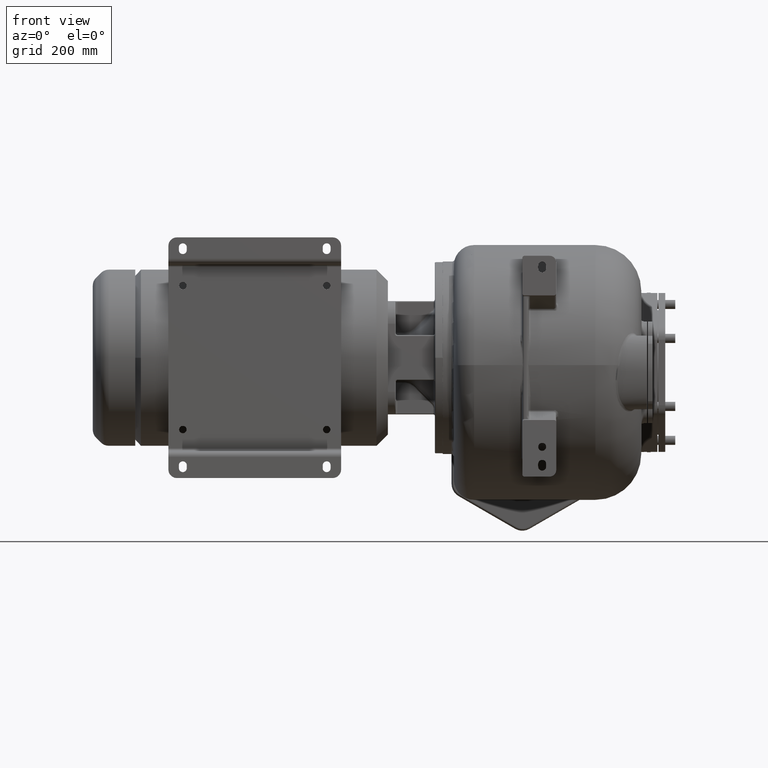
[diagram: clean part render]
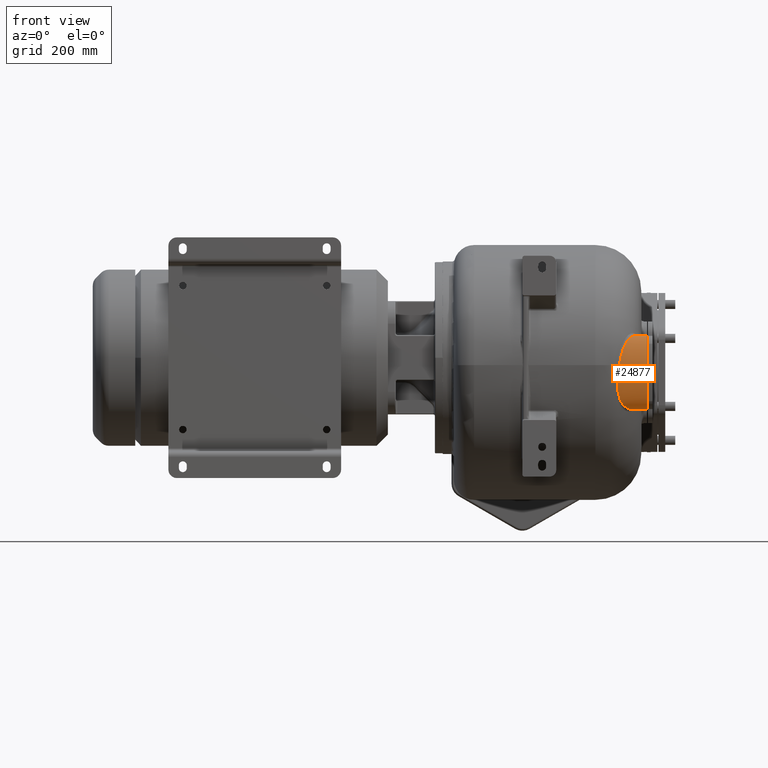
[diagram: same view with one face highlighted and labeled with its STEP entity id]
A machine part, front view. The second image highlights one B-rep face of the part: STEP entity #24877.
In plain terms, the highlighted face is a SurfaceOfExtrusion surface.
Its self-contained STEP definition (entity closure, byte-faithful):
#6023=DIRECTION('',(-1.E0,0.E0,0.E0));
#6024=VECTOR('',#6023,2.633895280527E1);
#6025=CARTESIAN_POINT('',(1.85E2,4.5E1,-9.1E1));
#6026=LINE('',#6025,#6024);
#6170=CARTESIAN_POINT('',(1.360504816277E2,1.554197965468E1,-1.370046149286E1));
#6171=CARTESIAN_POINT('',(1.359270702611E2,1.547818520666E1,-1.441773325629E1));
#6172=CARTESIAN_POINT('',(1.356864989935E2,1.536158015509E1,-1.585883126118E1));
#6173=CARTESIAN_POINT('',(1.353447720343E2,1.522000062888E1,-1.804012835692E1));
#6174=CARTESIAN_POINT('',(1.350238064137E2,1.511257676339E1,-2.023213683794E1));
#6175=CARTESIAN_POINT('',(1.347246638243E2,1.503959539495E1,-2.242828428868E1));
#6176=CARTESIAN_POINT('',(1.344485680324E2,1.500107340490E1,-2.462142809417E1));
#6177=CARTESIAN_POINT('',(1.341963768236E2,1.499669647621E1,-2.680459362378E1));
#6178=CARTESIAN_POINT('',(1.339690324307E2,1.502583345995E1,-2.897059246637E1));
#6179=CARTESIAN_POINT('',(1.337674532240E2,1.508753002723E1,-3.111224533575E1));
#6180=CARTESIAN_POINT('',(1.335921851828E2,1.518047172145E1,-3.322198780128E1));
#6181=CARTESIAN_POINT('',(1.334434764853E2,1.530321216138E1,-3.529566560505E1));
#6182=CARTESIAN_POINT('',(1.333213404344E2,1.545423683552E1,-3.732996503770E1));
#6183=CARTESIAN_POINT('',(1.332255746691E2,1.563190305946E1,-3.932143562015E1));
#6184=CARTESIAN_POINT('',(1.331560003275E2,1.583455755960E1,-4.126766256640E1));
#6185=CARTESIAN_POINT('',(1.331122067196E2,1.606045884254E1,-4.316608732514E1));
#6186=CARTESIAN_POINT('',(1.330936408444E2,1.630786179101E1,-4.501482385974E1));
#6187=CARTESIAN_POINT('',(1.330997459596E2,1.657519393913E1,-4.681344316483E1));
#6188=CARTESIAN_POINT('',(1.331297861811E2,1.686085647522E1,-4.856123918664E1));
#6189=CARTESIAN_POINT('',(1.331830293202E2,1.716337152258E1,-5.025821576260E1));
#6190=CARTESIAN_POINT('',(1.332587440920E2,1.748138652538E1,-5.190484021647E1));
#6191=CARTESIAN_POINT('',(1.333560949965E2,1.781358159314E1,-5.350150951288E1));
#6192=CARTESIAN_POINT('',(1.334743163419E2,1.815879243788E1,-5.504913339738E1));
#6193=CARTESIAN_POINT('',(1.336126313100E2,1.851594904163E1,-5.654873711948E1));
#6194=CARTESIAN_POINT('',(1.337702449214E2,1.888405861243E1,-5.800139044890E1));
#6195=CARTESIAN_POINT('',(1.339464224720E2,1.926222885868E1,-5.940829142560E1));
#6196=CARTESIAN_POINT('',(1.341404343645E2,1.964965361540E1,-6.077069268125E1));
#6197=CARTESIAN_POINT('',(1.343515713762E2,2.004559721749E1,-6.208984473018E1));
#6198=CARTESIAN_POINT('',(1.345791561941E2,2.044937922696E1,-6.336695790816E1));
#6199=CARTESIAN_POINT('',(1.348225509367E2,2.086041251126E1,-6.460332542211E1));
#6200=CARTESIAN_POINT('',(1.350811244479E2,2.127813491055E1,-6.580011404374E1));
#6201=CARTESIAN_POINT('',(1.353542728013E2,2.170202785179E1,-6.695844831141E1));
#6202=CARTESIAN_POINT('',(1.356414484689E2,2.213165615235E1,-6.807951660292E1));
#6203=CARTESIAN_POINT('',(1.359420812624E2,2.256656996003E1,-6.916431897279E1));
#6204=CARTESIAN_POINT('',(1.362556523297E2,2.300637989495E1,-7.021388423837E1));
#6205=CARTESIAN_POINT('',(1.365816850819E2,2.345074659750E1,-7.122923387209E1));
#6206=CARTESIAN_POINT('',(1.369196698908E2,2.389930688520E1,-7.221122683238E1));
#6207=CARTESIAN_POINT('',(1.372691745457E2,2.435177109510E1,-7.316079017542E1));
#6208=CARTESIAN_POINT('',(1.376297746917E2,2.480785843640E1,-7.407877239527E1));
#6209=CARTESIAN_POINT('',(1.380010287479E2,2.526728102219E1,-7.496592993988E1));
#6210=CARTESIAN_POINT('',(1.383825818921E2,2.572981973838E1,-7.582307827537E1));
#6211=CARTESIAN_POINT('',(1.387740554725E2,2.619523728177E1,-7.665092524514E1));
#6212=CARTESIAN_POINT('',(1.391750868538E2,2.666331915357E1,-7.745016019934E1));
#6213=CARTESIAN_POINT('',(1.395853922515E2,2.713389909914E1,-7.822149287660E1));
#6214=CARTESIAN_POINT('',(1.400046474195E2,2.760678912336E1,-7.896553936112E1));
#6215=CARTESIAN_POINT('',(1.404325772777E2,2.808184627450E1,-7.968293660978E1));
#6216=CARTESIAN_POINT('',(1.408689661746E2,2.855894897138E1,-8.037429955607E1));
#6217=CARTESIAN_POINT('',(1.413135609568E2,2.903797402094E1,-8.104019188898E1));
#6218=CARTESIAN_POINT('',(1.417661800312E2,2.951884650860E1,-8.168119686100E1));
#6219=CARTESIAN_POINT('',(1.422266793193E2,3.000149564869E1,-8.229785344539E1));
#6220=CARTESIAN_POINT('',(1.426948922582E2,3.048587590609E1,-8.289068694172E1));
#6221=CARTESIAN_POINT('',(1.431707351189E2,3.097197796314E1,-8.346021837149E1));
#6222=CARTESIAN_POINT('',(1.436541409165E2,3.145979554802E1,-8.400692406579E1));
#6223=CARTESIAN_POINT('',(1.441450362592E2,3.194936753928E1,-8.453128325456E1));
#6224=CARTESIAN_POINT('',(1.446434389959E2,3.244074734762E1,-8.503373962346E1));
#6225=CARTESIAN_POINT('',(1.451493543968E2,3.293400821355E1,-8.551470783212E1));
#6226=CARTESIAN_POINT('',(1.456628045401E2,3.342927081562E1,-8.597459630058E1));
#6227=CARTESIAN_POINT('',(1.461838934747E2,3.392665020701E1,-8.641375415427E1));
#6228=CARTESIAN_POINT('',(1.467126801152E2,3.442629819017E1,-8.683251108654E1));
#6229=CARTESIAN_POINT('',(1.472492662372E2,3.492840281181E1,-8.723116988671E1));
#6230=CARTESIAN_POINT('',(1.477937867277E2,3.543312724201E1,-8.760995752101E1));
#6231=CARTESIAN_POINT('',(1.483463110858E2,3.594067645695E1,-8.796907922317E1));
#6232=CARTESIAN_POINT('',(1.489069681307E2,3.645127402373E1,-8.830869419306E1));
#6233=CARTESIAN_POINT('',(1.494757999400E2,3.696507847920E1,-8.862886507963E1));
#6234=CARTESIAN_POINT('',(1.500528195646E2,3.748230286724E1,-8.892963992392E1));
#6235=CARTESIAN_POINT('',(1.506380093926E2,3.800310913354E1,-8.921098354562E1));
#6236=CARTESIAN_POINT('',(1.512311192010E2,3.852752950053E1,-8.947275618875E1));
#6237=CARTESIAN_POINT('',(1.518319497091E2,3.905568217179E1,-8.971483090680E1));
#6238=CARTESIAN_POINT('',(1.524399548824E2,3.958743642136E1,-8.993694251578E1));
#6239=CARTESIAN_POINT('',(1.530545029367E2,4.012262747803E1,-9.013881995339E1));
#6240=CARTESIAN_POINT('',(1.536747690103E2,4.066103748361E1,-9.032017805048E1));
#6241=CARTESIAN_POINT('',(1.542995225005E2,4.120209907400E1,-9.048065366055E1));
#6242=CARTESIAN_POINT('',(1.549275574323E2,4.174536423859E1,-9.061998237677E1));
#6243=CARTESIAN_POINT('',(1.555571178814E2,4.228998120842E1,-9.073786836614E1));
#6244=CARTESIAN_POINT('',(1.561864406551E2,4.283504411971E1,-9.083412852335E1));
#6245=CARTESIAN_POINT('',(1.568135942189E2,4.337968315528E1,-9.090870144485E1));
#6246=CARTESIAN_POINT('',(1.574366360226E2,4.392281363811E1,-9.096163098893E1));
#6247=CARTESIAN_POINT('',(1.580537472504E2,4.446362089847E1,-9.099310769476E1));
#6248=CARTESIAN_POINT('',(1.584595151615E2,4.482154711169E1,-9.099999976978E1));
#6249=CARTESIAN_POINT('',(1.586610471947E2,4.5E1,-9.1E1));
#6251=CARTESIAN_POINT('',(1.646378415523E2,4.5E1,3.9E1));
#6252=CARTESIAN_POINT('',(1.644840791418E2,4.483219630276E1,3.899999978715E1));
#6253=CARTESIAN_POINT('',(1.641739155734E2,4.449538659035E1,3.899390292554E1));
#6254=CARTESIAN_POINT('',(1.637007289707E2,4.398614009872E1,3.896601826750E1));
#6255=CARTESIAN_POINT('',(1.632208002470E2,4.347369330160E1,3.891901159906E1));
#6256=CARTESIAN_POINT('',(1.627350410260E2,4.295848349432E1,3.885255396908E1));
#6257=CARTESIAN_POINT('',(1.622444107781E2,4.244106858494E1,3.876637765117E1));
#6258=CARTESIAN_POINT('',(1.617499351772E2,4.192194339885E1,3.866026662436E1));
#6259=CARTESIAN_POINT('',(1.612526203143E2,4.140166430210E1,3.853407312757E1));
#6260=CARTESIAN_POINT('',(1.607534872024E2,4.088077660525E1,3.838771390070E1));
#6261=CARTESIAN_POINT('',(1.602533194615E2,4.035960366082E1,3.822109190030E1));
#6262=CARTESIAN_POINT('',(1.597529251027E2,3.983854475625E1,3.803416786055E1));
#6263=CARTESIAN_POINT('',(1.592528900883E2,3.931778551217E1,3.782685674272E1));
#6264=CARTESIAN_POINT('',(1.587537056022E2,3.879746102011E1,3.759905497128E1));
#6265=CARTESIAN_POINT('',(1.582557946100E2,3.827769583338E1,3.735065628564E1));
#6266=CARTESIAN_POINT('',(1.577593322921E2,3.775838460804E1,3.708142635162E1));
#6267=CARTESIAN_POINT('',(1.572645579738E2,3.723952237124E1,3.679114716750E1));
#6268=CARTESIAN_POINT('',(1.567714744386E2,3.672094906782E1,3.647948068072E1));
#6269=CARTESIAN_POINT('',(1.562801009049E2,3.620247744888E1,3.614601380353E1));
#6270=CARTESIAN_POINT('',(1.557903965605E2,3.568397318221E1,3.579031175416E1));
#6271=CARTESIAN_POINT('',(1.553022047031E2,3.516517368514E1,3.541178772420E1));
#6272=CARTESIAN_POINT('',(1.548154547623E2,3.464590158123E1,3.500983955183E1));
#6273=CARTESIAN_POINT('',(1.543299433339E2,3.412595705526E1,3.458377719722E1));
#6274=CARTESIAN_POINT('',(1.538455026041E2,3.360510730823E1,3.413279870850E1));
#6275=CARTESIAN_POINT('',(1.533619976294E2,3.308321663316E1,3.365610064808E1));
#6276=CARTESIAN_POINT('',(1.528791930817E2,3.256009415510E1,3.315274464413E1));
#6277=CARTESIAN_POINT('',(1.523969552156E2,3.203560117846E1,3.262174430417E1));
#6278=CARTESIAN_POINT('',(1.519151243528E2,3.150966174466E1,3.206208504731E1));
#6279=CARTESIAN_POINT('',(1.514335113153E2,3.098215868436E1,3.147260951132E1));
#6280=CARTESIAN_POINT('',(1.509520266682E2,3.045307654297E1,3.085216674237E1));
#6281=CARTESIAN_POINT('',(1.504705305043E2,2.992241574649E1,3.019952384123E1));
#6282=CARTESIAN_POINT('',(1.499889096361E2,2.939018583825E1,2.951334476821E1));
#6283=CARTESIAN_POINT('',(1.495071263960E2,2.885650743549E1,2.879232203679E1));
#6284=CARTESIAN_POINT('',(1.490250913027E2,2.832148377768E1,2.803501047411E1));
#6285=CARTESIAN_POINT('',(1.485427754570E2,2.778528635239E1,2.723993053659E1));
#6286=CARTESIAN_POINT('',(1.480601932901E2,2.724817708762E1,2.640561158693E1));
#6287=CARTESIAN_POINT('',(1.475773489644E2,2.671042553129E1,2.553046347572E1));
#6288=CARTESIAN_POINT('',(1.470943121545E2,2.617241330648E1,2.461293811671E1));
#6289=CARTESIAN_POINT('',(1.466111547782E2,2.563455416159E1,2.365140680205E1));
#6290=CARTESIAN_POINT('',(1.461279293063E2,2.509726824047E1,2.264409111907E1));
#6291=CARTESIAN_POINT('',(1.456447397646E2,2.456110540031E1,2.158928366532E1));
#6292=CARTESIAN_POINT('',(1.451616966258E2,2.402664813325E1,2.048516980212E1));
#6293=CARTESIAN_POINT('',(1.446789191011E2,2.349456032289E1,1.932990860818E1));
#6294=CARTESIAN_POINT('',(1.441965482427E2,2.296561770410E1,1.812170262733E1));
#6295=CARTESIAN_POINT('',(1.437148468174E2,2.244073072071E1,1.685887010031E1));
#6296=CARTESIAN_POINT('',(1.432340541377E2,2.192090238321E1,1.553976767934E1));
#6297=CARTESIAN_POINT('',(1.427544469260E2,2.140723987823E1,1.416282479039E1));
#6298=CARTESIAN_POINT('',(1.422764054419E2,2.090097860699E1,1.272663408661E1));
#6299=CARTESIAN_POINT('',(1.418002047478E2,2.040340888171E1,1.122975740153E1));
#6300=CARTESIAN_POINT('',(1.413263004347E2,1.991602209443E1,9.671176870260E0));
#6301=CARTESIAN_POINT('',(1.408552356984E2,1.944045480826E1,8.050242295737E0));
#6302=CARTESIAN_POINT('',(1.403873978284E2,1.897835476240E1,6.366246014621E0));
#6303=CARTESIAN_POINT('',(1.399234552405E2,1.853158366781E1,4.619190648308E0));
#6304=CARTESIAN_POINT('',(1.394639778455E2,1.810201834138E1,2.809188961652E0));
#6305=CARTESIAN_POINT('',(1.390095013690E2,1.769160149345E1,9.366272535084E-1));
#6306=CARTESIAN_POINT('',(1.385610931907E2,1.730262221593E1,
-9.962398037769E-1));
#6307=CARTESIAN_POINT('',(1.381195055737E2,1.693719549440E1,-2.987386601075E0));
#6308=CARTESIAN_POINT('',(1.376856617113E2,1.659748565333E1,-5.033912645730E0));
#6309=CARTESIAN_POINT('',(1.372607274019E2,1.628566284286E1,-7.131827542763E0));
#6310=CARTESIAN_POINT('',(1.368455578576E2,1.600368502075E1,-9.277173534793E0));
#6311=CARTESIAN_POINT('',(1.364411119511E2,1.575331441287E1,-1.146619499546E1));
#6312=CARTESIAN_POINT('',(1.361793469772E2,1.560859175097E1,-1.295151615410E1));
#6313=CARTESIAN_POINT('',(1.360504816277E2,1.554197965468E1,-1.370046149286E1));
#6315=DIRECTION('',(-1.E0,0.E0,0.E0));
#6316=VECTOR('',#6315,2.036215844774E1);
#6317=CARTESIAN_POINT('',(1.85E2,4.5E1,3.9E1));
#6318=LINE('',#6317,#6316);
#6319=CARTESIAN_POINT('',(1.85E2,4.5E1,-9.1E1));
#6365=CARTESIAN_POINT('',(1.85E2,4.5E1,3.9E1));
#6367=CARTESIAN_POINT('',(1.85E2,4.5E1,3.9E1));
#6368=CARTESIAN_POINT('',(1.85E2,4.411611652352E1,3.9E1));
#6369=CARTESIAN_POINT('',(1.85E2,4.231580987356E1,3.883054573986E1));
#6370=CARTESIAN_POINT('',(1.85E2,3.954669183567E1,3.801550426950E1));
#6371=CARTESIAN_POINT('',(1.85E2,3.674407334957E1,3.659653086462E1));
#6372=CARTESIAN_POINT('',(1.85E2,3.394853609390E1,3.454396596498E1));
#6373=CARTESIAN_POINT('',(1.85E2,3.120473455370E1,3.184504268982E1));
#6374=CARTESIAN_POINT('',(1.85E2,2.855949894121E1,2.850662593933E1));
#6375=CARTESIAN_POINT('',(1.85E2,2.605951407211E1,2.455670292812E1));
#6376=CARTESIAN_POINT('',(1.85E2,2.374878201847E1,2.004430550236E1));
#6377=CARTESIAN_POINT('',(1.85E2,2.166613724042E1,1.503771972519E1));
#6378=CARTESIAN_POINT('',(1.85E2,1.984309525637E1,9.621084892584E0));
#6379=CARTESIAN_POINT('',(1.85E2,1.830228971476E1,3.889744524680E0));
#6380=CARTESIAN_POINT('',(1.85E2,1.705662465524E1,-2.055171699464E0));
#6381=CARTESIAN_POINT('',(1.85E2,1.626720200340E1,-7.102629447988E0));
#6382=CARTESIAN_POINT('',(1.85E2,1.578180522600E1,-1.114838075888E1));
#6383=CARTESIAN_POINT('',(1.85E2,1.548924009925E1,-1.417539635025E1));
#6384=CARTESIAN_POINT('',(1.85E2,1.526626806201E1,-1.718444339938E1));
#6385=CARTESIAN_POINT('',(1.85E2,1.513652702068E1,-1.966876328257E1));
#6386=CARTESIAN_POINT('',(1.85E2,1.506505597521E1,-2.163772202145E1));
#6387=CARTESIAN_POINT('',(1.85E2,1.502725391379E1,-2.310419558503E1));
#6388=CARTESIAN_POINT('',(1.85E2,1.500861162112E1,-2.431669961455E1));
#6389=CARTESIAN_POINT('',(1.85E2,1.500122072680E1,-2.528089254330E1));
#6390=CARTESIAN_POINT('',(1.85E2,1.499938963660E1,-2.6E1));
#6391=CARTESIAN_POINT('',(1.85E2,1.500122072680E1,-2.671910745670E1));
#6392=CARTESIAN_POINT('',(1.85E2,1.500861162112E1,-2.768330038545E1));
#6393=CARTESIAN_POINT('',(1.85E2,1.502725391379E1,-2.889580441497E1));
#6394=CARTESIAN_POINT('',(1.85E2,1.506505597521E1,-3.036227797855E1));
#6395=CARTESIAN_POINT('',(1.85E2,1.513652702068E1,-3.233123671743E1));
#6396=CARTESIAN_POINT('',(1.85E2,1.526626806201E1,-3.481555660062E1));
#6397=CARTESIAN_POINT('',(1.85E2,1.548924009925E1,-3.782460364975E1));
#6398=CARTESIAN_POINT('',(1.85E2,1.578180522600E1,-4.085161924112E1));
#6399=CARTESIAN_POINT('',(1.85E2,1.626720200340E1,-4.489737055201E1));
#6400=CARTESIAN_POINT('',(1.85E2,1.705662465524E1,-4.994482830054E1));
#6401=CARTESIAN_POINT('',(1.85E2,1.830228971476E1,-5.588974452468E1));
#6402=CARTESIAN_POINT('',(1.85E2,1.984309525637E1,-6.162108489258E1));
#6403=CARTESIAN_POINT('',(1.85E2,2.166613724042E1,-6.703771972519E1));
#6404=CARTESIAN_POINT('',(1.85E2,2.374878201847E1,-7.204430550236E1));
#6405=CARTESIAN_POINT('',(1.85E2,2.605951407211E1,-7.655670292812E1));
#6406=CARTESIAN_POINT('',(1.85E2,2.855949894121E1,-8.050662593933E1));
#6407=CARTESIAN_POINT('',(1.85E2,3.120473455370E1,-8.384504268982E1));
#6408=CARTESIAN_POINT('',(1.85E2,3.394853609390E1,-8.654396596498E1));
#6409=CARTESIAN_POINT('',(1.85E2,3.674407334957E1,-8.859653086462E1));
#6410=CARTESIAN_POINT('',(1.85E2,3.954669183567E1,-9.001550426950E1));
#6411=CARTESIAN_POINT('',(1.85E2,4.231580987356E1,-9.083054573986E1));
#6412=CARTESIAN_POINT('',(1.85E2,4.411611652352E1,-9.1E1));
#6413=CARTESIAN_POINT('',(1.85E2,4.5E1,-9.1E1));
#16100=VERTEX_POINT('',#6319);
#16101=VERTEX_POINT('',#6365);
#16118=CARTESIAN_POINT('',(1.586610471947E2,4.5E1,-9.1E1));
#16119=VERTEX_POINT('',#16118);
#16120=CARTESIAN_POINT('',(1.646378415523E2,4.5E1,3.9E1));
#16121=VERTEX_POINT('',#16120);
#16200=VERTEX_POINT('',#6170);
#24861=CARTESIAN_POINT('',(1.85E2,4.5E1,-2.6E1));
#24862=DIRECTION('',(1.E0,0.E0,0.E0));
#24863=DIRECTION('',(0.E0,0.E0,-1.E0));
#24864=AXIS2_PLACEMENT_3D('',#24861,#24862,#24863);
#24866=DIRECTION('',(1.E0,0.E0,0.E0));
#24867=VECTOR('',#24866,1.E0);
#24868=SURFACE_OF_LINEAR_EXTRUSION('',#24865,#24867);
#24869=ORIENTED_EDGE('',*,*,#24850,.T.);
#24870=ORIENTED_EDGE('',*,*,#24399,.F.);
#24871=ORIENTED_EDGE('',*,*,#24523,.F.);
#24872=ORIENTED_EDGE('',*,*,#24854,.F.);
#24874=ORIENTED_EDGE('',*,*,#24873,.T.);
#24875=EDGE_LOOP('',(#24869,#24870,#24871,#24872,#24874));
#24876=FACE_OUTER_BOUND('',#24875,.F.);
#24877=ADVANCED_FACE('',(#24876),#24868,.T.);
#6250=B_SPLINE_CURVE_WITH_KNOTS('',3,(#6170,#6171,#6172,#6173,#6174,#6175,#6176,
#6177,#6178,#6179,#6180,#6181,#6182,#6183,#6184,#6185,#6186,#6187,#6188,#6189,
#6190,#6191,#6192,#6193,#6194,#6195,#6196,#6197,#6198,#6199,#6200,#6201,#6202,
#6203,#6204,#6205,#6206,#6207,#6208,#6209,#6210,#6211,#6212,#6213,#6214,#6215,
#6216,#6217,#6218,#6219,#6220,#6221,#6222,#6223,#6224,#6225,#6226,#6227,#6228,
#6229,#6230,#6231,#6232,#6233,#6234,#6235,#6236,#6237,#6238,#6239,#6240,#6241,
#6242,#6243,#6244,#6245,#6246,#6247,#6248,#6249),.UNSPECIFIED.,.F.,.F.,(4,1,1,1,
1,1,1,1,1,1,1,1,1,1,1,1,1,1,1,1,1,1,1,1,1,1,1,1,1,1,1,1,1,1,1,1,1,1,1,1,1,1,1,1,
1,1,1,1,1,1,1,1,1,1,1,1,1,1,1,1,1,1,1,1,1,1,1,1,1,1,1,1,1,1,1,1,1,4),(0.E0,
1.298701298701E-2,2.597402597403E-2,3.896103896104E-2,5.194805194805E-2,
6.493506493506E-2,7.792207792208E-2,9.090909090909E-2,1.038961038961E-1,
1.168831168831E-1,1.298701298701E-1,1.428571428571E-1,1.558441558442E-1,
1.688311688312E-1,1.818181818182E-1,1.948051948052E-1,2.077922077922E-1,
2.207792207792E-1,2.337662337662E-1,2.467532467532E-1,2.597402597403E-1,
2.727272727273E-1,2.857142857143E-1,2.987012987013E-1,3.116883116883E-1,
3.246753246753E-1,3.376623376623E-1,3.506493506494E-1,3.636363636364E-1,
3.766233766234E-1,3.896103896104E-1,4.025974025974E-1,4.155844155844E-1,
4.285714285714E-1,4.415584415584E-1,4.545454545455E-1,4.675324675325E-1,
4.805194805195E-1,4.935064935065E-1,5.064935064935E-1,5.194805194805E-1,
5.324675324675E-1,5.454545454545E-1,5.584415584416E-1,5.714285714286E-1,
5.844155844156E-1,5.974025974026E-1,6.103896103896E-1,6.233766233766E-1,
6.363636363636E-1,6.493506493506E-1,6.623376623377E-1,6.753246753247E-1,
6.883116883117E-1,7.012987012987E-1,7.142857142857E-1,7.272727272727E-1,
7.402597402597E-1,7.532467532468E-1,7.662337662338E-1,7.792207792208E-1,
7.922077922078E-1,8.051948051948E-1,8.181818181818E-1,8.311688311688E-1,
8.441558441558E-1,8.571428571429E-1,8.701298701299E-1,8.831168831169E-1,
8.961038961039E-1,9.090909090909E-1,9.220779220779E-1,9.350649350649E-1,
9.480519480519E-1,9.610389610390E-1,9.740259740260E-1,9.870129870130E-1,1.E0),
.UNSPECIFIED.);
#6314=B_SPLINE_CURVE_WITH_KNOTS('',3,(#6251,#6252,#6253,#6254,#6255,#6256,#6257,
#6258,#6259,#6260,#6261,#6262,#6263,#6264,#6265,#6266,#6267,#6268,#6269,#6270,
#6271,#6272,#6273,#6274,#6275,#6276,#6277,#6278,#6279,#6280,#6281,#6282,#6283,
#6284,#6285,#6286,#6287,#6288,#6289,#6290,#6291,#6292,#6293,#6294,#6295,#6296,
#6297,#6298,#6299,#6300,#6301,#6302,#6303,#6304,#6305,#6306,#6307,#6308,#6309,
#6310,#6311,#6312,#6313),.UNSPECIFIED.,.F.,.F.,(4,1,1,1,1,1,1,1,1,1,1,1,1,1,1,1,
1,1,1,1,1,1,1,1,1,1,1,1,1,1,1,1,1,1,1,1,1,1,1,1,1,1,1,1,1,1,1,1,1,1,1,1,1,1,1,1,
1,1,1,1,4),(0.E0,1.666666666667E-2,3.333333333333E-2,5.E-2,6.666666666667E-2,
8.333333333333E-2,1.E-1,1.166666666667E-1,1.333333333333E-1,1.5E-1,
1.666666666667E-1,1.833333333333E-1,2.E-1,2.166666666667E-1,2.333333333333E-1,
2.5E-1,2.666666666667E-1,2.833333333333E-1,3.E-1,3.166666666667E-1,
3.333333333333E-1,3.5E-1,3.666666666667E-1,3.833333333333E-1,4.E-1,
4.166666666667E-1,4.333333333333E-1,4.5E-1,4.666666666667E-1,4.833333333333E-1,
5.E-1,5.166666666667E-1,5.333333333333E-1,5.5E-1,5.666666666667E-1,
5.833333333333E-1,6.E-1,6.166666666667E-1,6.333333333333E-1,6.5E-1,
6.666666666667E-1,6.833333333333E-1,7.E-1,7.166666666667E-1,7.333333333333E-1,
7.5E-1,7.666666666667E-1,7.833333333333E-1,8.E-1,8.166666666667E-1,
8.333333333333E-1,8.5E-1,8.666666666667E-1,8.833333333333E-1,9.E-1,
9.166666666667E-1,9.333333333333E-1,9.5E-1,9.666666666667E-1,9.833333333333E-1,
1.E0),.UNSPECIFIED.);
#6414=B_SPLINE_CURVE_WITH_KNOTS('',3,(#6367,#6368,#6369,#6370,#6371,#6372,#6373,
#6374,#6375,#6376,#6377,#6378,#6379,#6380,#6381,#6382,#6383,#6384,#6385,#6386,
#6387,#6388,#6389,#6390,#6391,#6392,#6393,#6394,#6395,#6396,#6397,#6398,#6399,
#6400,#6401,#6402,#6403,#6404,#6405,#6406,#6407,#6408,#6409,#6410,#6411,#6412,
#6413),.UNSPECIFIED.,.F.,.F.,(4,1,1,1,1,1,1,1,1,1,1,1,1,1,1,1,1,1,1,1,1,1,1,1,1,
1,1,1,1,1,1,1,1,1,1,1,1,1,1,1,1,1,1,1,4),(0.E0,3.125E-2,6.25E-2,9.375E-2,
1.25E-1,1.5625E-1,1.875E-1,2.1875E-1,2.5E-1,2.8125E-1,3.125E-1,3.4375E-1,
3.75E-1,4.0625E-1,4.21875E-1,4.375E-1,4.53125E-1,4.6875E-1,4.765625E-1,
4.84375E-1,4.921875E-1,4.9609375E-1,5.E-1,5.0390625E-1,5.078125E-1,5.15625E-1,
5.234375E-1,5.3125E-1,5.46875E-1,5.625E-1,5.78125E-1,5.9375E-1,6.25E-1,
6.5625E-1,6.875E-1,7.1875E-1,7.5E-1,7.8125E-1,8.125E-1,8.4375E-1,8.75E-1,
9.0625E-1,9.375E-1,9.6875E-1,1.E0),.UNSPECIFIED.);
#24399=EDGE_CURVE('',#16200,#16119,#6250,.T.);
#24523=EDGE_CURVE('',#16121,#16200,#6314,.T.);
#24850=EDGE_CURVE('',#16100,#16119,#6026,.T.);
#24854=EDGE_CURVE('',#16101,#16121,#6318,.T.);
#24865=ELLIPSE('',#24864,6.5E1,3.E1);
#24873=EDGE_CURVE('',#16101,#16100,#6414,.T.);